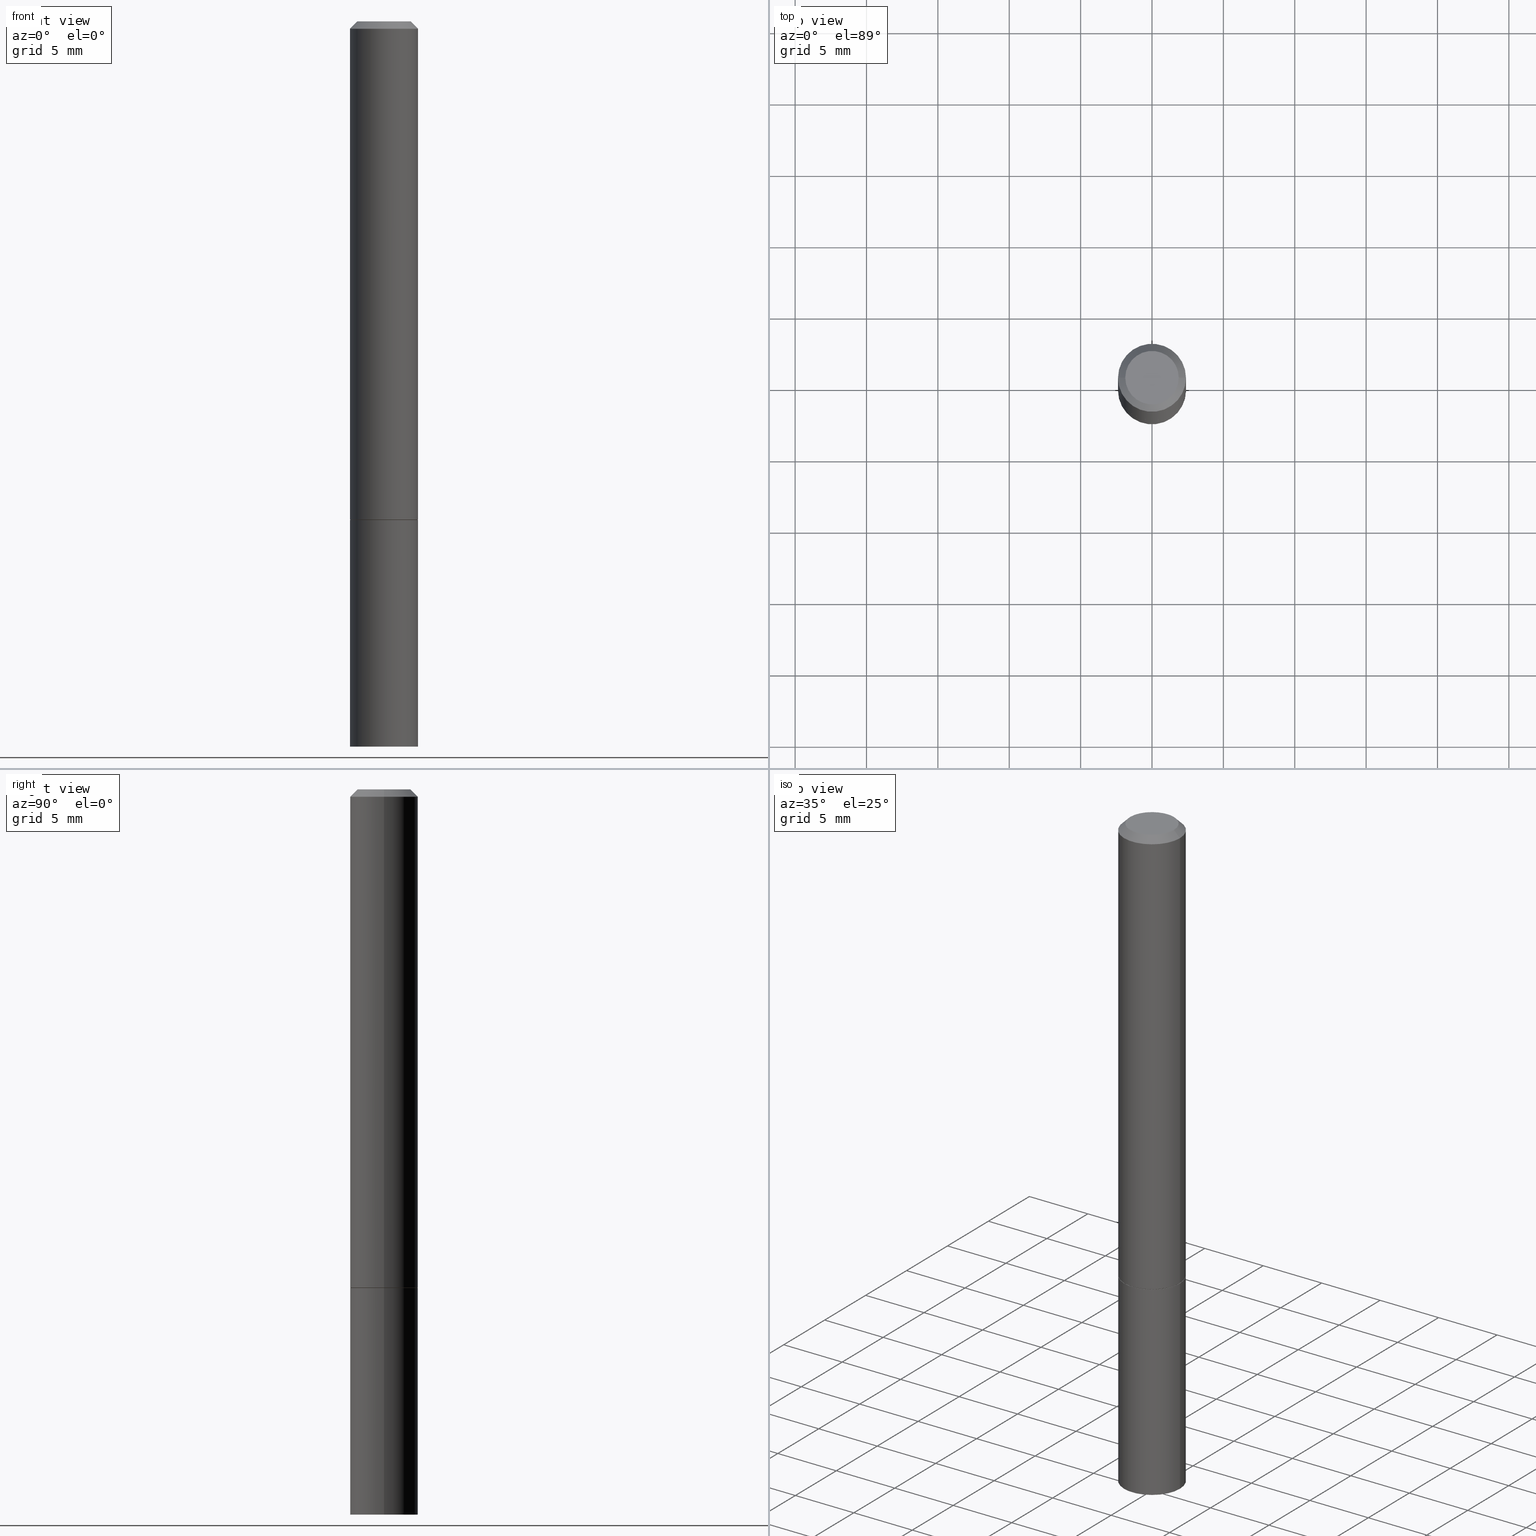
[diagram: canonical four-view strip — front | top / right | iso, engineering-drawing reading convention]
A machine part, canonical four-view strip (front | top / right | iso — engineering-drawing reading convention). The complete STEP part file that produces these views, byte-faithful:
ISO-10303-21;
HEADER;
FILE_DESCRIPTION (( 'STEP AP203' ),
    '1' );
FILE_NAME ('39123.STEP',
    '2023-03-21T20:54:29',
    ( '' ),
    ( '' ),
    'SwSTEP 2.0',
    'SolidWorks 2022',
    '' );
FILE_SCHEMA (( 'CONFIG_CONTROL_DESIGN' ));
ENDSEC;

DATA;
#1 = DIRECTION ( 'NONE',  ( 1.000000000000000000, -6.982962677686265922E-15, 4.876176775795935232E-29 ) ) ;
#2 = CARTESIAN_POINT ( 'NONE',  ( 6.546527510331211293E-16, 0.09374999999999521216, -1.375000000000000222 ) ) ;
#3 = CIRCLE ( 'NONE', #46, 0.09375000000000001388 ) ;
#4 = VECTOR ( 'NONE', #69, 39.37007874015748143 ) ;
#5 = DIRECTION ( 'NONE',  ( -1.000000000000000000, 6.982962677686266711E-15, 0.000000000000000000 ) ) ;
#6 = CYLINDRICAL_SURFACE ( 'NONE', #172, 0.09374999999999991673 ) ;
#7 = LINE ( 'NONE', #193, #305 ) ;
#8 = DIRECTION ( 'NONE',  ( 1.000000000000000000, -6.982962677686265922E-15, 4.876176775795935793E-29 ) ) ;
#9 = AXIS2_PLACEMENT_3D ( 'NONE', #129, #366, #62 ) ;
#10 = LINE ( 'NONE', #281, #97 ) ;
#11 = FACE_OUTER_BOUND ( 'NONE', #48, .T. ) ;
#12 = AXIS2_PLACEMENT_3D ( 'NONE', #325, #262, #293 ) ;
#13 = DIRECTION ( 'NONE',  ( 1.000000000000000000, 0.000000000000000000, 0.000000000000000000 ) ) ;
#14 = DIRECTION ( 'NONE',  ( 0.7071067811866259545, -2.468850131083078659E-15, 0.7071067811864690800 ) ) ;
#15 = CIRCLE ( 'NONE', #232, 0.09375000000000001388 ) ;
#16 = APPROVAL_PERSON_ORGANIZATION ( #241, #154, #303 ) ;
#17 = ADVANCED_FACE ( 'NONE', ( #191 ), #235, .F. ) ;
#18 = ORIENTED_EDGE ( 'NONE', *, *, #37, .T. ) ;
#19 = CARTESIAN_POINT ( 'NONE',  ( 4.890937612370278413E-31, -6.982962677686297772E-17, -0.02000000000000002123 ) ) ;
#20 = ORIENTED_EDGE ( 'NONE', *, *, #376, .F. ) ;
#21 = ORIENTED_EDGE ( 'NONE', *, *, #131, .F. ) ;
#22 = CLOSED_SHELL ( 'NONE', ( #182, #295, #17, #318, #108 ) ) ;
#23 = VECTOR ( 'NONE', #204, 39.37007874015748143 ) ;
#24 = CC_DESIGN_SECURITY_CLASSIFICATION ( #139, ( #134 ) ) ;
#25 = DATE_AND_TIME ( #359, #151 ) ;
#26 = VERTEX_POINT ( 'NONE', #248 ) ;
#27 = COORDINATED_UNIVERSAL_TIME_OFFSET ( 5, 0, .BEHIND. ) ;
#28 = ORIENTED_EDGE ( 'NONE', *, *, #369, .T. ) ;
#29 = CALENDAR_DATE ( 2023, 21, 3 ) ;
#30 = EDGE_LOOP ( 'NONE', ( #28, #242, #271, #94 ) ) ;
#31 = APPROVAL_STATUS ( 'not_yet_approved' ) ;
#32 = EDGE_CURVE ( 'NONE', #120, #381, #386, .T. ) ;
#33 = CYLINDRICAL_SURFACE ( 'NONE', #40, 0.09375000000000001388 ) ;
#34 = APPROVAL_PERSON_ORGANIZATION ( #79, #357, #356 ) ;
#35 = DIRECTION ( 'NONE',  ( 1.000000000000000000, -6.982962677686262766E-15, 0.000000000000000000 ) ) ;
#36 = DIRECTION ( 'NONE',  ( -2.445468806185136597E-29, 3.491481338843145583E-15, 1.000000000000000000 ) ) ;
#37 = EDGE_CURVE ( 'NONE', #390, #142, #15, .T. ) ;
#38 = DIRECTION ( 'NONE',  ( 1.000000000000000000, -6.982962677686265922E-15, 4.876176775795935793E-29 ) ) ;
#39 = CARTESIAN_POINT ( 'NONE',  ( 0.000000000000000000, 0.000000000000000000, 0.000000000000000000 ) ) ;
#40 = AXIS2_PLACEMENT_3D ( 'NONE', #194, #257, #8 ) ;
#41 = DIRECTION ( 'NONE',  ( -2.445468806185136597E-29, 3.491481338843145583E-15, 1.000000000000000000 ) ) ;
#42 = CARTESIAN_POINT ( 'NONE',  ( -0.09375000000000001388, -5.225740944522714123E-15, -1.375000000000000000 ) ) ;
#43 = EDGE_CURVE ( 'NONE', #349, #109, #220, .T. ) ;
#44 = LINE ( 'NONE', #323, #184 ) ;
#45 = CARTESIAN_POINT ( 'NONE',  ( 0.09274999999999998523, -5.448456629264724842E-15, -1.374999999999999778 ) ) ;
#46 = AXIS2_PLACEMENT_3D ( 'NONE', #307, #117, #216 ) ;
#47 = DIRECTION ( 'NONE',  ( -2.445468806185136597E-29, 3.491481338843145583E-15, 1.000000000000000000 ) ) ;
#48 = EDGE_LOOP ( 'NONE', ( #72, #106, #148, #335 ) ) ;
#49 = EDGE_LOOP ( 'NONE', ( #144, #21 ) ) ;
#50 = PERSON_AND_ORGANIZATION ( #78, #128 ) ;
#51 = AXIS2_PLACEMENT_3D ( 'NONE', #222, #308, #1 ) ;
#52 = PERSON_AND_ORGANIZATION ( #78, #128 ) ;
#53 = ORIENTED_EDGE ( 'NONE', *, *, #280, .F. ) ;
#54 = DATE_AND_TIME ( #215, #226 ) ;
#55 = CC_DESIGN_DATE_AND_TIME_ASSIGNMENT ( #54, #157, ( #380 ) ) ;
#56 = CARTESIAN_POINT ( 'NONE',  ( 0.09375000000000001388, -5.451948110603568638E-15, -1.373999999999999888 ) ) ;
#57 = DIRECTION ( 'NONE',  ( -2.445468806185136877E-29, 3.491481338843145188E-15, 1.000000000000000000 ) ) ;
#58 = ORIENTED_EDGE ( 'NONE', *, *, #61, .F. ) ;
#59 = AXIS2_PLACEMENT_3D ( 'NONE', #260, #132, #368 ) ;
#60 = APPROVAL_STATUS ( 'not_yet_approved' ) ;
#61 = EDGE_CURVE ( 'NONE', #349, #388, #7, .T. ) ;
#62 = DIRECTION ( 'NONE',  ( 1.000000000000000000, -6.982962677686261189E-15, 0.000000000000000000 ) ) ;
#63 = CARTESIAN_POINT ( 'NONE',  ( -0.09374999999999984734, -6.328309926653205239E-15, -2.000000000000000000 ) ) ;
#64 = DIRECTION ( 'NONE',  ( 1.000000000000000000, -6.982962677686266711E-15, 0.000000000000000000 ) ) ;
#65 = PRODUCT_RELATED_PRODUCT_CATEGORY ( 'detail', '', ( #158 ) ) ;
#66 = DIRECTION ( 'NONE',  ( 2.445468806185136597E-29, -3.491481338843145583E-15, -1.000000000000000000 ) ) ;
#67 = AXIS2_PLACEMENT_3D ( 'NONE', #199, #41, #64 ) ;
#68 = AXIS2_PLACEMENT_3D ( 'NONE', #348, #143, #288 ) ;
#69 = DIRECTION ( 'NONE',  ( 0.7071067811865466846, -7.319954787623252890E-15, -0.7071067811865483499 ) ) ;
#70 = CC_DESIGN_PERSON_AND_ORGANIZATION_ASSIGNMENT ( #50, #300, ( #139 ) ) ;
#71 = APPLICATION_PROTOCOL_DEFINITION ( 'international standard', 'config_control_design', 1994, #137 ) ;
#72 = ORIENTED_EDGE ( 'NONE', *, *, #284, .F. ) ;
#73 = LINE ( 'NONE', #181, #23 ) ;
#74 =( NAMED_UNIT ( * ) PLANE_ANGLE_UNIT ( ) SI_UNIT ( $, .RADIAN. ) );
#75 = APPROVAL ( #31, 'UNSPECIFIED' ) ;
#76 = AXIS2_PLACEMENT_3D ( 'NONE', #174, #150, #13 ) ;
#77 = EDGE_LOOP ( 'NONE', ( #294, #83, #374, #92 ) ) ;
#78 = PERSON ( 'UNSPECIFIED', 'UNSPECIFIED', 'UNSPECIFIED', ('UNSPECIFIED'), ('UNSPECIFIED'), ('UNSPECIFIED') ) ;
#79 = PERSON_AND_ORGANIZATION ( #78, #128 ) ;
#80 = APPROVAL_DATE_TIME ( #387, #154 ) ;
#81 = AXIS2_PLACEMENT_3D ( 'NONE', #88, #361, #163 ) ;
#82 = LOCAL_TIME ( 16, 54, 29.00000000000000000, #27 ) ;
#83 = ORIENTED_EDGE ( 'NONE', *, *, #354, .T. ) ;
#84 = EDGE_CURVE ( 'NONE', #109, #349, #206, .T. ) ;
#85 = PERSON_AND_ORGANIZATION ( #78, #128 ) ;
#86 = ORIENTED_EDGE ( 'NONE', *, *, #334, .T. ) ;
#87 = DATE_TIME_ROLE ( 'classification_date' ) ;
#88 = CARTESIAN_POINT ( 'NONE',  ( 4.890937612370273194E-29, -6.982962677686291165E-15, -2.000000000000000000 ) ) ;
#89 = ORIENTED_EDGE ( 'NONE', *, *, #98, .F. ) ;
#90 = APPROVAL_ROLE ( '' ) ;
#91 = LINE ( 'NONE', #249, #133 ) ;
#92 = ORIENTED_EDGE ( 'NONE', *, *, #32, .F. ) ;
#93 = VECTOR ( 'NONE', #167, 39.37007874015748143 ) ;
#94 = ORIENTED_EDGE ( 'NONE', *, *, #363, .F. ) ;
#95 = CARTESIAN_POINT ( 'NONE',  ( 5.149934974793613022E-16, 0.07374999999999988509, -2.574967487396815385E-16 ) ) ;
#96 = CARTESIAN_POINT ( 'NONE',  ( 0.09375000000000001388, -6.546527510330875041E-16, 4.571415727308690506E-30 ) ) ;
#97 = VECTOR ( 'NONE', #362, 39.37007874015748854 ) ;
#98 = EDGE_CURVE ( 'NONE', #276, #152, #355, .T. ) ;
#99 = CYLINDRICAL_SURFACE ( 'NONE', #59, 0.09374999999999991673 ) ;
#100 = ADVANCED_BREP_SHAPE_REPRESENTATION ( '39123', ( #141, #156, #76 ), #231 ) ;
#101 = CARTESIAN_POINT ( 'NONE',  ( 3.362519608504561700E-29, -4.800786840909324141E-15, -1.374999999999999778 ) ) ;
#102 = DIRECTION ( 'NONE',  ( -0.7071067811865466846, 2.468850131082247989E-15, -0.7071067811865483499 ) ) ;
#103 = FACE_OUTER_BOUND ( 'NONE', #30, .T. ) ;
#104 = CLOSED_SHELL ( 'NONE', ( #287, #278, #234, #340, #277, #237, #239, #188 ) ) ;
#105 = EDGE_CURVE ( 'NONE', #326, #276, #91, .T. ) ;
#106 = ORIENTED_EDGE ( 'NONE', *, *, #131, .T. ) ;
#107 = LENGTH_MEASURE_WITH_UNIT ( LENGTH_MEASURE( 0.02539999999999999897 ), #321 );
#108 = ADVANCED_FACE ( 'NONE', ( #360 ), #219, .F. ) ;
#109 = VERTEX_POINT ( 'NONE', #124 ) ;
#110 =( CONVERSION_BASED_UNIT ( 'INCH', #107 ) LENGTH_UNIT ( ) NAMED_UNIT ( #118 ) );
#111 = CARTESIAN_POINT ( 'NONE',  ( -0.09374999999999984734, 5.848231242562234171E-16, -0.02000000000000002123 ) ) ;
#112 = ORIENTED_EDGE ( 'NONE', *, *, #98, .T. ) ;
#113 = PERSON_AND_ORGANIZATION ( #78, #128 ) ;
#114 = EDGE_LOOP ( 'NONE', ( #292, #351, #245, #263 ) ) ;
#115 = EDGE_CURVE ( 'NONE', #353, #120, #3, .T. ) ;
#116 = SECURITY_CLASSIFICATION_LEVEL ( 'unclassified' ) ;
#117 = DIRECTION ( 'NONE',  ( -2.445468806185136597E-29, 3.491481338843145583E-15, 1.000000000000000000 ) ) ;
#118 = DIMENSIONAL_EXPONENTS ( 1.000000000000000000, 0.000000000000000000, 0.000000000000000000, 0.000000000000000000, 0.000000000000000000, 0.000000000000000000, 0.000000000000000000 ) ;
#119 = DIRECTION ( 'NONE',  ( -2.445468806185136597E-29, 3.491481338843145583E-15, 1.000000000000000000 ) ) ;
#120 = VERTEX_POINT ( 'NONE', #56 ) ;
#121 = SHAPE_DEFINITION_REPRESENTATION ( #185, #100 ) ;
#122 = CARTESIAN_POINT ( 'NONE',  ( 3.362519608504562260E-29, -4.800786840909324930E-15, -1.375000000000000000 ) ) ;
#123 = DATE_AND_TIME ( #247, #352 ) ;
#124 = CARTESIAN_POINT ( 'NONE',  ( 0.07374999999999988509, -6.094815207017963170E-16, 3.931526600461599449E-30 ) ) ;
#125 = ORIENTED_EDGE ( 'NONE', *, *, #84, .T. ) ;
#126 = CONICAL_SURFACE ( 'NONE', #310, 0.09274999999999998523, 0.7853981633975591903 ) ;
#127 = VECTOR ( 'NONE', #14, 39.37007874015748143 ) ;
#128 = ORGANIZATION ( 'UNSPECIFIED', 'UNSPECIFIED', '' ) ;
#129 = CARTESIAN_POINT ( 'NONE',  ( 3.360074139698377778E-29, -4.797295359570481134E-15, -1.373999999999999888 ) ) ;
#130 = LINE ( 'NONE', #96, #93 ) ;
#131 = EDGE_CURVE ( 'NONE', #178, #26, #274, .T. ) ;
#132 = DIRECTION ( 'NONE',  ( -2.445468806185136597E-29, 3.491481338843145583E-15, 1.000000000000000000 ) ) ;
#133 = VECTOR ( 'NONE', #389, 39.37007874015748854 ) ;
#134 = PRODUCT_DEFINITION_FORMATION_WITH_SPECIFIED_SOURCE ( 'ANY', '', #158, .NOT_KNOWN. ) ;
#135 = DIRECTION ( 'NONE',  ( 1.000000000000000000, -6.982962677686262766E-15, 0.000000000000000000 ) ) ;
#136 = DIRECTION ( 'NONE',  ( -2.438088387897960049E-29, 3.491481338843145188E-15, 1.000000000000000000 ) ) ;
#137 = APPLICATION_CONTEXT ( 'configuration controlled 3d designs of mechanical parts and assemblies' ) ;
#138 = CIRCLE ( 'NONE', #68, 0.09375000000000001388 ) ;
#139 = SECURITY_CLASSIFICATION ( '', '', #116 ) ;
#140 = LINE ( 'NONE', #208, #4 ) ;
#141 = MANIFOLD_SOLID_BREP ( 'Body-Move/Copy2[1]', #22 ) ;
#142 = VERTEX_POINT ( 'NONE', #229 ) ;
#143 = DIRECTION ( 'NONE',  ( -2.445468806185136597E-29, 3.491481338843145583E-15, 1.000000000000000000 ) ) ;
#144 = ORIENTED_EDGE ( 'NONE', *, *, #369, .F. ) ;
#145 = EDGE_CURVE ( 'NONE', #326, #152, #10, .T. ) ;
#146 = DIRECTION ( 'NONE',  ( -1.000000000000000000, 6.982962677686266711E-15, 0.000000000000000000 ) ) ;
#147 = AXIS2_PLACEMENT_3D ( 'NONE', #377, #47, #375 ) ;
#148 = ORIENTED_EDGE ( 'NONE', *, *, #363, .T. ) ;
#149 = CONICAL_SURFACE ( 'NONE', #233, 751.2258538476485228, 1.518436449235072372 ) ;
#150 = DIRECTION ( 'NONE',  ( 0.000000000000000000, 0.000000000000000000, 1.000000000000000000 ) ) ;
#151 = LOCAL_TIME ( 16, 54, 29.00000000000000000, #275 ) ;
#152 = VERTEX_POINT ( 'NONE', #364 ) ;
#153 = APPROVAL_DATE_TIME ( #123, #75 ) ;
#154 = APPROVAL ( #60, 'UNSPECIFIED' ) ;
#155 = ORIENTED_EDGE ( 'NONE', *, *, #186, .T. ) ;
#156 = MANIFOLD_SOLID_BREP ( 'Body-Move/Copy2[2]', #104 ) ;
#157 = DATE_TIME_ROLE ( 'creation_date' ) ;
#158 = PRODUCT ( '39123', '39123', '', ( #238 ) ) ;
#159 = EDGE_LOOP ( 'NONE', ( #205, #296, #53 ) ) ;
#160 = PERSON_AND_ORGANIZATION ( #78, #128 ) ;
#161 = AXIS2_PLACEMENT_3D ( 'NONE', #95, #228, #339 ) ;
#162 = CC_DESIGN_PERSON_AND_ORGANIZATION_ASSIGNMENT ( #52, #272, ( #134 ) ) ;
#163 = DIRECTION ( 'NONE',  ( 1.000000000000000000, -6.982962677686261189E-15, 0.000000000000000000 ) ) ;
#164 = ORIENTED_EDGE ( 'NONE', *, *, #32, .T. ) ;
#165 = PERSON_AND_ORGANIZATION ( #78, #128 ) ;
#166 = CARTESIAN_POINT ( 'NONE',  ( 3.362519608504561700E-29, -4.800786840909324141E-15, -1.374999999999999778 ) ) ;
#167 = DIRECTION ( 'NONE',  ( -2.445468806185136877E-29, 3.491481338843145188E-15, 1.000000000000000000 ) ) ;
#168 = CC_DESIGN_PERSON_AND_ORGANIZATION_ASSIGNMENT ( #160, #187, ( #134 ) ) ;
#169 = FACE_OUTER_BOUND ( 'NONE', #330, .T. ) ;
#170 = CARTESIAN_POINT ( 'NONE',  ( -0.09274999999999998523, -4.141758453491831225E-15, -1.374999999999999778 ) ) ;
#171 = APPLICATION_CONTEXT ( 'configuration controlled 3d designs of mechanical parts and assemblies' ) ;
#172 = AXIS2_PLACEMENT_3D ( 'NONE', #198, #36, #311 ) ;
#173 = FACE_OUTER_BOUND ( 'NONE', #211, .T. ) ;
#174 = CARTESIAN_POINT ( 'NONE',  ( 0.000000000000000000, 0.000000000000000000, 0.000000000000000000 ) ) ;
#175 = ORIENTED_EDGE ( 'NONE', *, *, #105, .F. ) ;
#176 = FACE_OUTER_BOUND ( 'NONE', #268, .T. ) ;
#177 = DIRECTION ( 'NONE',  ( 2.445468806185136597E-29, -3.491481338843145583E-15, -1.000000000000000000 ) ) ;
#178 = VERTEX_POINT ( 'NONE', #313 ) ;
#179 =( NAMED_UNIT ( * ) SI_UNIT ( $, .STERADIAN. ) SOLID_ANGLE_UNIT ( ) );
#180 = ORIENTED_EDGE ( 'NONE', *, *, #115, .T. ) ;
#181 = CARTESIAN_POINT ( 'NONE',  ( -0.09374999999999991673, 6.661338147750933326E-16, -4.611501647113969791E-30 ) ) ;
#182 = ADVANCED_FACE ( 'NONE', ( #259 ), #33, .T. ) ;
#183 = CIRCLE ( 'NONE', #9, 0.09375000000000001388 ) ;
#184 = VECTOR ( 'NONE', #370, 39.37007874015748143 ) ;
#185 = PRODUCT_DEFINITION_SHAPE ( 'NONE', 'NONE',  #380 ) ;
#186 = EDGE_CURVE ( 'NONE', #152, #142, #130, .T. ) ;
#187 = PERSON_AND_ORGANIZATION_ROLE ( 'creator' ) ;
#188 = ADVANCED_FACE ( 'NONE', ( #169 ), #282, .F. ) ;
#189 = ORIENTED_EDGE ( 'NONE', *, *, #354, .F. ) ;
#190 = DATE_AND_TIME ( #210, #82 ) ;
#191 = FACE_OUTER_BOUND ( 'NONE', #159, .T. ) ;
#192 = ORIENTED_EDGE ( 'NONE', *, *, #43, .F. ) ;
#193 = CARTESIAN_POINT ( 'NONE',  ( -0.09374999999999984734, 5.848231242562234171E-16, -0.02000000000000002123 ) ) ;
#194 = CARTESIAN_POINT ( 'NONE',  ( 0.000000000000000000, 0.000000000000000000, 0.000000000000000000 ) ) ;
#195 = FACE_OUTER_BOUND ( 'NONE', #77, .T. ) ;
#196 = CONICAL_SURFACE ( 'NONE', #316, 0.09274999999999998523, 0.7853981633975591903 ) ;
#197 = DIRECTION ( 'NONE',  ( -2.445468806185136597E-29, 3.491481338843145583E-15, 1.000000000000000000 ) ) ;
#198 = CARTESIAN_POINT ( 'NONE',  ( 0.000000000000000000, 0.000000000000000000, 0.000000000000000000 ) ) ;
#199 = CARTESIAN_POINT ( 'NONE',  ( 4.890937612370278413E-31, -6.982962677686297772E-17, -0.02000000000000002123 ) ) ;
#200 = FACE_OUTER_BOUND ( 'NONE', #322, .T. ) ;
#201 = DESIGN_CONTEXT ( 'detailed design', #171, 'design' ) ;
#202 = CYLINDRICAL_SURFACE ( 'NONE', #251, 0.09375000000000001388 ) ;
#203 = EDGE_LOOP ( 'NONE', ( #189, #180, #164, #20 ) ) ;
#204 = DIRECTION ( 'NONE',  ( -2.445468806185136877E-29, 3.491481338843145188E-15, 1.000000000000000000 ) ) ;
#205 = ORIENTED_EDGE ( 'NONE', *, *, #145, .F. ) ;
#206 = CIRCLE ( 'NONE', #341, 0.07374999999999988509 ) ;
#207 = ORIENTED_EDGE ( 'NONE', *, *, #84, .F. ) ;
#208 = CARTESIAN_POINT ( 'NONE',  ( 0.09374999999999984734, -7.130013140679430017E-16, -0.02000000000000002123 ) ) ;
#209 = ORIENTED_EDGE ( 'NONE', *, *, #334, .F. ) ;
#210 = CALENDAR_DATE ( 2023, 21, 3 ) ;
#211 = EDGE_LOOP ( 'NONE', ( #207, #86, #289, #58 ) ) ;
#212 = VECTOR ( 'NONE', #309, 39.37007874015748143 ) ;
#213 = APPROVAL_STATUS ( 'not_yet_approved' ) ;
#214 = ORIENTED_EDGE ( 'NONE', *, *, #145, .T. ) ;
#215 = CALENDAR_DATE ( 2023, 21, 3 ) ;
#216 = DIRECTION ( 'NONE',  ( 1.000000000000000000, -6.982962677686261189E-15, 0.000000000000000000 ) ) ;
#217 = ORIENTED_EDGE ( 'NONE', *, *, #297, .T. ) ;
#218 = COORDINATED_UNIVERSAL_TIME_OFFSET ( 5, 0, .BEHIND. ) ;
#219 = PLANE ( 'NONE',  #243 ) ;
#220 = CIRCLE ( 'NONE', #51, 0.07374999999999988509 ) ;
#221 = CC_DESIGN_APPROVAL ( #75, ( #139 ) ) ;
#222 = CARTESIAN_POINT ( 'NONE',  ( 0.000000000000000000, 0.000000000000000000, 0.000000000000000000 ) ) ;
#223 = EDGE_CURVE ( 'NONE', #381, #388, #350, .T. ) ;
#224 = PLANE ( 'NONE',  #346 ) ;
#225 = CARTESIAN_POINT ( 'NONE',  ( 3.362519608504562260E-29, -4.800786840909324930E-15, -1.375000000000000000 ) ) ;
#226 = LOCAL_TIME ( 16, 54, 29.00000000000000000, #329 ) ;
#227 = CC_DESIGN_PERSON_AND_ORGANIZATION_ASSIGNMENT ( #165, #332, ( #380 ) ) ;
#228 = DIRECTION ( 'NONE',  ( 2.438088387897960049E-29, -3.491481338843145188E-15, -1.000000000000000000 ) ) ;
#229 = CARTESIAN_POINT ( 'NONE',  ( 0.09375000000000001388, -5.455439591942412434E-15, -1.375000000000000000 ) ) ;
#230 = FACE_OUTER_BOUND ( 'NONE', #240, .T. ) ;
#231 =( GEOMETRIC_REPRESENTATION_CONTEXT ( 3 ) GLOBAL_UNCERTAINTY_ASSIGNED_CONTEXT ( ( #319 ) ) GLOBAL_UNIT_ASSIGNED_CONTEXT ( ( #110, #74, #179 ) ) REPRESENTATION_CONTEXT ( 'NONE', 'WORKASPACE' ) );
#232 = AXIS2_PLACEMENT_3D ( 'NONE', #122, #304, #250 ) ;
#233 = AXIS2_PLACEMENT_3D ( 'NONE', #345, #177, #146 ) ;
#234 = ADVANCED_FACE ( 'NONE', ( #173 ), #331, .T. ) ;
#235 = CONICAL_SURFACE ( 'NONE', #291, 751.2258538476485228, 1.518436449235072372 ) ;
#236 = LINE ( 'NONE', #45, #127 ) ;
#237 = ADVANCED_FACE ( 'NONE', ( #11 ), #126, .T. ) ;
#238 = MECHANICAL_CONTEXT ( 'NONE', #137, 'mechanical' ) ;
#239 = ADVANCED_FACE ( 'NONE', ( #315 ), #224, .F. ) ;
#240 = EDGE_LOOP ( 'NONE', ( #175, #214, #89 ) ) ;
#241 = PERSON_AND_ORGANIZATION ( #78, #128 ) ;
#242 = ORIENTED_EDGE ( 'NONE', *, *, #284, .T. ) ;
#243 = AXIS2_PLACEMENT_3D ( 'NONE', #2, #385, #301 ) ;
#244 = PERSON_AND_ORGANIZATION_ROLE ( 'design_owner' ) ;
#245 = ORIENTED_EDGE ( 'NONE', *, *, #297, .F. ) ;
#246 = CC_DESIGN_PERSON_AND_ORGANIZATION_ASSIGNMENT ( #113, #244, ( #158 ) ) ;
#247 = CALENDAR_DATE ( 2023, 21, 3 ) ;
#248 = CARTESIAN_POINT ( 'NONE',  ( 0.09274999999999998523, -5.448456629264724842E-15, -1.374999999999999778 ) ) ;
#249 = CARTESIAN_POINT ( 'NONE',  ( -1.233176953775805598E-19, -6.965808229244704146E-15, -1.995086770692215294 ) ) ;
#250 = DIRECTION ( 'NONE',  ( 1.000000000000000000, -6.982962677686261189E-15, 0.000000000000000000 ) ) ;
#251 = AXIS2_PLACEMENT_3D ( 'NONE', #261, #327, #320 ) ;
#252 = CC_DESIGN_DATE_AND_TIME_ASSIGNMENT ( #25, #87, ( #139 ) ) ;
#253 = APPROVAL_PERSON_ORGANIZATION ( #85, #75, #90 ) ;
#254 = ORIENTED_EDGE ( 'NONE', *, *, #376, .T. ) ;
#255 = FACE_OUTER_BOUND ( 'NONE', #203, .T. ) ;
#256 = CIRCLE ( 'NONE', #12, 0.09274999999999998523 ) ;
#257 = DIRECTION ( 'NONE',  ( -2.445468806185136597E-29, 3.491481338843145583E-15, 1.000000000000000000 ) ) ;
#258 = DIRECTION ( 'NONE',  ( -2.445468806185136597E-29, 3.491481338843145583E-15, 1.000000000000000000 ) ) ;
#259 = FACE_OUTER_BOUND ( 'NONE', #114, .T. ) ;
#260 = CARTESIAN_POINT ( 'NONE',  ( 0.000000000000000000, 0.000000000000000000, 0.000000000000000000 ) ) ;
#261 = CARTESIAN_POINT ( 'NONE',  ( 0.000000000000000000, 0.000000000000000000, 0.000000000000000000 ) ) ;
#262 = DIRECTION ( 'NONE',  ( -2.445468806185136597E-29, 3.491481338843145583E-15, 1.000000000000000000 ) ) ;
#263 = ORIENTED_EDGE ( 'NONE', *, *, #186, .F. ) ;
#264 = CARTESIAN_POINT ( 'NONE',  ( -0.07374999999999988509, 5.499083108677923596E-16, -3.723527850031187664E-30 ) ) ;
#265 = ORIENTED_EDGE ( 'NONE', *, *, #338, .F. ) ;
#266 = EDGE_CURVE ( 'NONE', #120, #353, #183, .T. ) ;
#267 = CARTESIAN_POINT ( 'NONE',  ( 4.878836351073985601E-29, -6.965931546940130516E-15, -1.995086770692215294 ) ) ;
#268 = EDGE_LOOP ( 'NONE', ( #265, #112, #155, #302 ) ) ;
#269 = AXIS2_PLACEMENT_3D ( 'NONE', #367, #343, #285 ) ;
#270 = DIRECTION ( 'NONE',  ( -1.000000000000000000, 6.982962677686266711E-15, 0.000000000000000000 ) ) ;
#271 = ORIENTED_EDGE ( 'NONE', *, *, #266, .F. ) ;
#272 = PERSON_AND_ORGANIZATION_ROLE ( 'design_supplier' ) ;
#273 = DIRECTION ( 'NONE',  ( 2.445468806185136597E-29, -3.491481338843145583E-15, -1.000000000000000000 ) ) ;
#274 = CIRCLE ( 'NONE', #371, 0.09274999999999998523 ) ;
#275 = COORDINATED_UNIVERSAL_TIME_OFFSET ( 5, 0, .BEHIND. ) ;
#276 = VERTEX_POINT ( 'NONE', #63 ) ;
#277 = ADVANCED_FACE ( 'NONE', ( #255 ), #99, .T. ) ;
#278 = ADVANCED_FACE ( 'NONE', ( #195 ), #6, .T. ) ;
#279 = CIRCLE ( 'NONE', #147, 0.09374999999999984734 ) ;
#280 = EDGE_CURVE ( 'NONE', #152, #276, #378, .T. ) ;
#281 = CARTESIAN_POINT ( 'NONE',  ( 1.233176954751590042E-19, -6.965808229244704146E-15, -1.995086770692215294 ) ) ;
#282 = PLANE ( 'NONE',  #161 ) ;
#283 = DIRECTION ( 'NONE',  ( 1.000000000000000000, -6.982962677686262766E-15, 0.000000000000000000 ) ) ;
#284 = EDGE_CURVE ( 'NONE', #178, #353, #314, .T. ) ;
#285 = DIRECTION ( 'NONE',  ( 1.000000000000000000, -6.982962677686261189E-15, 0.000000000000000000 ) ) ;
#286 = CARTESIAN_POINT ( 'NONE',  ( 4.890937612370278413E-31, -6.982962677686297772E-17, -0.02000000000000002123 ) ) ;
#287 = ADVANCED_FACE ( 'NONE', ( #103 ), #196, .T. ) ;
#288 = DIRECTION ( 'NONE',  ( 1.000000000000000000, -6.982962677686261189E-15, 0.000000000000000000 ) ) ;
#289 = ORIENTED_EDGE ( 'NONE', *, *, #223, .T. ) ;
#290 = CARTESIAN_POINT ( 'NONE',  ( -0.09375000000000001388, -1.767428678398575728E-15, -1.373999999999999888 ) ) ;
#291 = AXIS2_PLACEMENT_3D ( 'NONE', #333, #273, #306 ) ;
#292 = ORIENTED_EDGE ( 'NONE', *, *, #280, .T. ) ;
#293 = DIRECTION ( 'NONE',  ( 1.000000000000000000, -6.982962677686262766E-15, 0.000000000000000000 ) ) ;
#294 = ORIENTED_EDGE ( 'NONE', *, *, #266, .T. ) ;
#295 = ADVANCED_FACE ( 'NONE', ( #230 ), #149, .F. ) ;
#296 = ORIENTED_EDGE ( 'NONE', *, *, #105, .T. ) ;
#297 = EDGE_CURVE ( 'NONE', #142, #390, #138, .T. ) ;
#298 = DIRECTION ( 'NONE',  ( 2.445468806185136597E-29, -3.491481338843145583E-15, -1.000000000000000000 ) ) ;
#299 = CONICAL_SURFACE ( 'NONE', #347, 0.09374999999999984734, 0.7853981633974471688 ) ;
#300 = PERSON_AND_ORGANIZATION_ROLE ( 'classification_officer' ) ;
#301 = DIRECTION ( 'NONE',  ( -1.000000000000000000, 6.982962677686265922E-15, -4.876176775795935793E-29 ) ) ;
#302 = ORIENTED_EDGE ( 'NONE', *, *, #37, .F. ) ;
#303 = APPROVAL_ROLE ( '' ) ;
#304 = DIRECTION ( 'NONE',  ( -2.445468806185136597E-29, 3.491481338843145583E-15, 1.000000000000000000 ) ) ;
#305 = VECTOR ( 'NONE', #102, 39.37007874015748143 ) ;
#306 = DIRECTION ( 'NONE',  ( -1.000000000000000000, 6.982962677686266711E-15, 0.000000000000000000 ) ) ;
#307 = CARTESIAN_POINT ( 'NONE',  ( 3.360074139698377778E-29, -4.797295359570481134E-15, -1.373999999999999888 ) ) ;
#308 = DIRECTION ( 'NONE',  ( -2.445468806185136597E-29, 3.491481338843145583E-15, 1.000000000000000000 ) ) ;
#309 = DIRECTION ( 'NONE',  ( -0.7071067811866259545, 7.493145998870638150E-15, 0.7071067811864690800 ) ) ;
#310 = AXIS2_PLACEMENT_3D ( 'NONE', #166, #258, #135 ) ;
#311 = DIRECTION ( 'NONE',  ( 1.000000000000000000, -6.982962677686266711E-15, 4.876176775795935793E-29 ) ) ;
#312 = CC_DESIGN_APPROVAL ( #154, ( #134 ) ) ;
#313 = CARTESIAN_POINT ( 'NONE',  ( -0.09274999999999998523, -4.136459999143609611E-15, -1.374999999999999778 ) ) ;
#314 = LINE ( 'NONE', #170, #212 ) ;
#315 = FACE_OUTER_BOUND ( 'NONE', #49, .T. ) ;
#316 = AXIS2_PLACEMENT_3D ( 'NONE', #101, #344, #35 ) ;
#317 = LOCAL_TIME ( 16, 54, 29.00000000000000000, #384 ) ;
#318 = ADVANCED_FACE ( 'NONE', ( #176 ), #202, .T. ) ;
#319 = UNCERTAINTY_MEASURE_WITH_UNIT (LENGTH_MEASURE( 1.000000000000000082E-05 ), #110, 'distance_accuracy_value', 'NONE');
#320 = DIRECTION ( 'NONE',  ( 1.000000000000000000, -6.982962677686265922E-15, 4.876176775795935793E-29 ) ) ;
#321 =( LENGTH_UNIT ( ) NAMED_UNIT ( * ) SI_UNIT ( $, .METRE. ) );
#322 = EDGE_LOOP ( 'NONE', ( #209, #192, #324, #254 ) ) ;
#323 = CARTESIAN_POINT ( 'NONE',  ( -0.09375000000000001388, 6.661338147750940229E-16, -4.611501647113973995E-30 ) ) ;
#324 = ORIENTED_EDGE ( 'NONE', *, *, #61, .T. ) ;
#325 = CARTESIAN_POINT ( 'NONE',  ( 3.362519608504561700E-29, -4.800786840909324141E-15, -1.374999999999999778 ) ) ;
#326 = VERTEX_POINT ( 'NONE', #267 ) ;
#327 = DIRECTION ( 'NONE',  ( -2.445468806185136597E-29, 3.491481338843145583E-15, 1.000000000000000000 ) ) ;
#328 = ORIENTED_EDGE ( 'NONE', *, *, #43, .T. ) ;
#329 = COORDINATED_UNIVERSAL_TIME_OFFSET ( 5, 0, .BEHIND. ) ;
#330 = EDGE_LOOP ( 'NONE', ( #328, #125 ) ) ;
#331 = CONICAL_SURFACE ( 'NONE', #365, 0.09374999999999984734, 0.7853981633974471688 ) ;
#332 = PERSON_AND_ORGANIZATION_ROLE ( 'creator' ) ;
#333 = CARTESIAN_POINT ( 'NONE',  ( 1.011572219194682015E-27, -1.444257034592898076E-13, -41.36516551084969251 ) ) ;
#334 = EDGE_CURVE ( 'NONE', #109, #381, #140, .T. ) ;
#335 = ORIENTED_EDGE ( 'NONE', *, *, #115, .F. ) ;
#336 = VECTOR ( 'NONE', #57, 39.37007874015748143 ) ;
#337 = APPLICATION_PROTOCOL_DEFINITION ( 'international standard', 'config_control_design', 1994, #171 ) ;
#338 = EDGE_CURVE ( 'NONE', #276, #390, #44, .T. ) ;
#339 = DIRECTION ( 'NONE',  ( -1.000000000000000000, 6.982962677686265922E-15, -4.876176775795935793E-29 ) ) ;
#340 = ADVANCED_FACE ( 'NONE', ( #200 ), #299, .T. ) ;
#341 = AXIS2_PLACEMENT_3D ( 'NONE', #39, #119, #383 ) ;
#342 = CARTESIAN_POINT ( 'NONE',  ( 3.362519608504561700E-29, -4.800786840909324141E-15, -1.374999999999999778 ) ) ;
#343 = DIRECTION ( 'NONE',  ( -2.445468806185136597E-29, 3.491481338843145583E-15, 1.000000000000000000 ) ) ;
#344 = DIRECTION ( 'NONE',  ( -2.445468806185136597E-29, 3.491481338843145583E-15, 1.000000000000000000 ) ) ;
#345 = CARTESIAN_POINT ( 'NONE',  ( 1.011572219194682015E-27, -1.444257034592898076E-13, -41.36516551084969251 ) ) ;
#346 = AXIS2_PLACEMENT_3D ( 'NONE', #225, #136, #38 ) ;
#347 = AXIS2_PLACEMENT_3D ( 'NONE', #19, #298, #270 ) ;
#348 = CARTESIAN_POINT ( 'NONE',  ( 3.362519608504562260E-29, -4.800786840909324930E-15, -1.375000000000000000 ) ) ;
#349 = VERTEX_POINT ( 'NONE', #264 ) ;
#350 = CIRCLE ( 'NONE', #67, 0.09374999999999984734 ) ;
#351 = ORIENTED_EDGE ( 'NONE', *, *, #338, .T. ) ;
#352 = LOCAL_TIME ( 16, 54, 29.00000000000000000, #218 ) ;
#353 = VERTEX_POINT ( 'NONE', #290 ) ;
#354 = EDGE_CURVE ( 'NONE', #353, #388, #73, .T. ) ;
#355 = CIRCLE ( 'NONE', #81, 0.09375000000000001388 ) ;
#356 = APPROVAL_ROLE ( '' ) ;
#357 = APPROVAL ( #213, 'UNSPECIFIED' ) ;
#358 = CARTESIAN_POINT ( 'NONE',  ( 0.09374999999999991673, -6.546527510330869125E-16, 4.571415727308685602E-30 ) ) ;
#359 = CALENDAR_DATE ( 2023, 21, 3 ) ;
#360 = FACE_OUTER_BOUND ( 'NONE', #372, .T. ) ;
#361 = DIRECTION ( 'NONE',  ( -2.445468806185136597E-29, 3.491481338843145583E-15, 1.000000000000000000 ) ) ;
#362 = DIRECTION ( 'NONE',  ( 0.9986295347545742773, -7.033825938272001856E-15, -0.05233595624293820026 ) ) ;
#363 = EDGE_CURVE ( 'NONE', #26, #120, #236, .T. ) ;
#364 = CARTESIAN_POINT ( 'NONE',  ( 0.09374999999999984734, -7.626134364977371460E-15, -2.000000000000000000 ) ) ;
#365 = AXIS2_PLACEMENT_3D ( 'NONE', #286, #66, #5 ) ;
#366 = DIRECTION ( 'NONE',  ( -2.445468806185136597E-29, 3.491481338843145583E-15, 1.000000000000000000 ) ) ;
#367 = CARTESIAN_POINT ( 'NONE',  ( 4.890937612370273194E-29, -6.982962677686291165E-15, -2.000000000000000000 ) ) ;
#368 = DIRECTION ( 'NONE',  ( 1.000000000000000000, -6.982962677686266711E-15, 4.876176775795935793E-29 ) ) ;
#369 = EDGE_CURVE ( 'NONE', #26, #178, #256, .T. ) ;
#370 = DIRECTION ( 'NONE',  ( -2.445468806185136877E-29, 3.491481338843145188E-15, 1.000000000000000000 ) ) ;
#371 = AXIS2_PLACEMENT_3D ( 'NONE', #342, #197, #283 ) ;
#372 = EDGE_LOOP ( 'NONE', ( #217, #18 ) ) ;
#373 = CARTESIAN_POINT ( 'NONE',  ( 0.09374999999999984734, -7.130013140679430017E-16, -0.02000000000000002123 ) ) ;
#374 = ORIENTED_EDGE ( 'NONE', *, *, #223, .F. ) ;
#375 = DIRECTION ( 'NONE',  ( 1.000000000000000000, -6.982962677686266711E-15, 0.000000000000000000 ) ) ;
#376 = EDGE_CURVE ( 'NONE', #388, #381, #279, .T. ) ;
#377 = CARTESIAN_POINT ( 'NONE',  ( 4.890937612370278413E-31, -6.982962677686297772E-17, -0.02000000000000002123 ) ) ;
#378 = CIRCLE ( 'NONE', #269, 0.09375000000000001388 ) ;
#379 = CC_DESIGN_APPROVAL ( #357, ( #380 ) ) ;
#380 = PRODUCT_DEFINITION ( 'UNKNOWN', '', #134, #201 ) ;
#381 = VERTEX_POINT ( 'NONE', #373 ) ;
#382 = APPROVAL_DATE_TIME ( #190, #357 ) ;
#383 = DIRECTION ( 'NONE',  ( 1.000000000000000000, -6.982962677686265922E-15, 4.876176775795935232E-29 ) ) ;
#384 = COORDINATED_UNIVERSAL_TIME_OFFSET ( 5, 0, .BEHIND. ) ;
#385 = DIRECTION ( 'NONE',  ( 2.438088387897960049E-29, -3.491481338843145188E-15, -1.000000000000000000 ) ) ;
#386 = LINE ( 'NONE', #358, #336 ) ;
#387 = DATE_AND_TIME ( #29, #317 ) ;
#388 = VERTEX_POINT ( 'NONE', #111 ) ;
#389 = DIRECTION ( 'NONE',  ( -0.9986295347545742773, 6.790662755453662155E-15, -0.05233595624293820026 ) ) ;
#390 = VERTEX_POINT ( 'NONE', #42 ) ;
ENDSEC;
END-ISO-10303-21;
